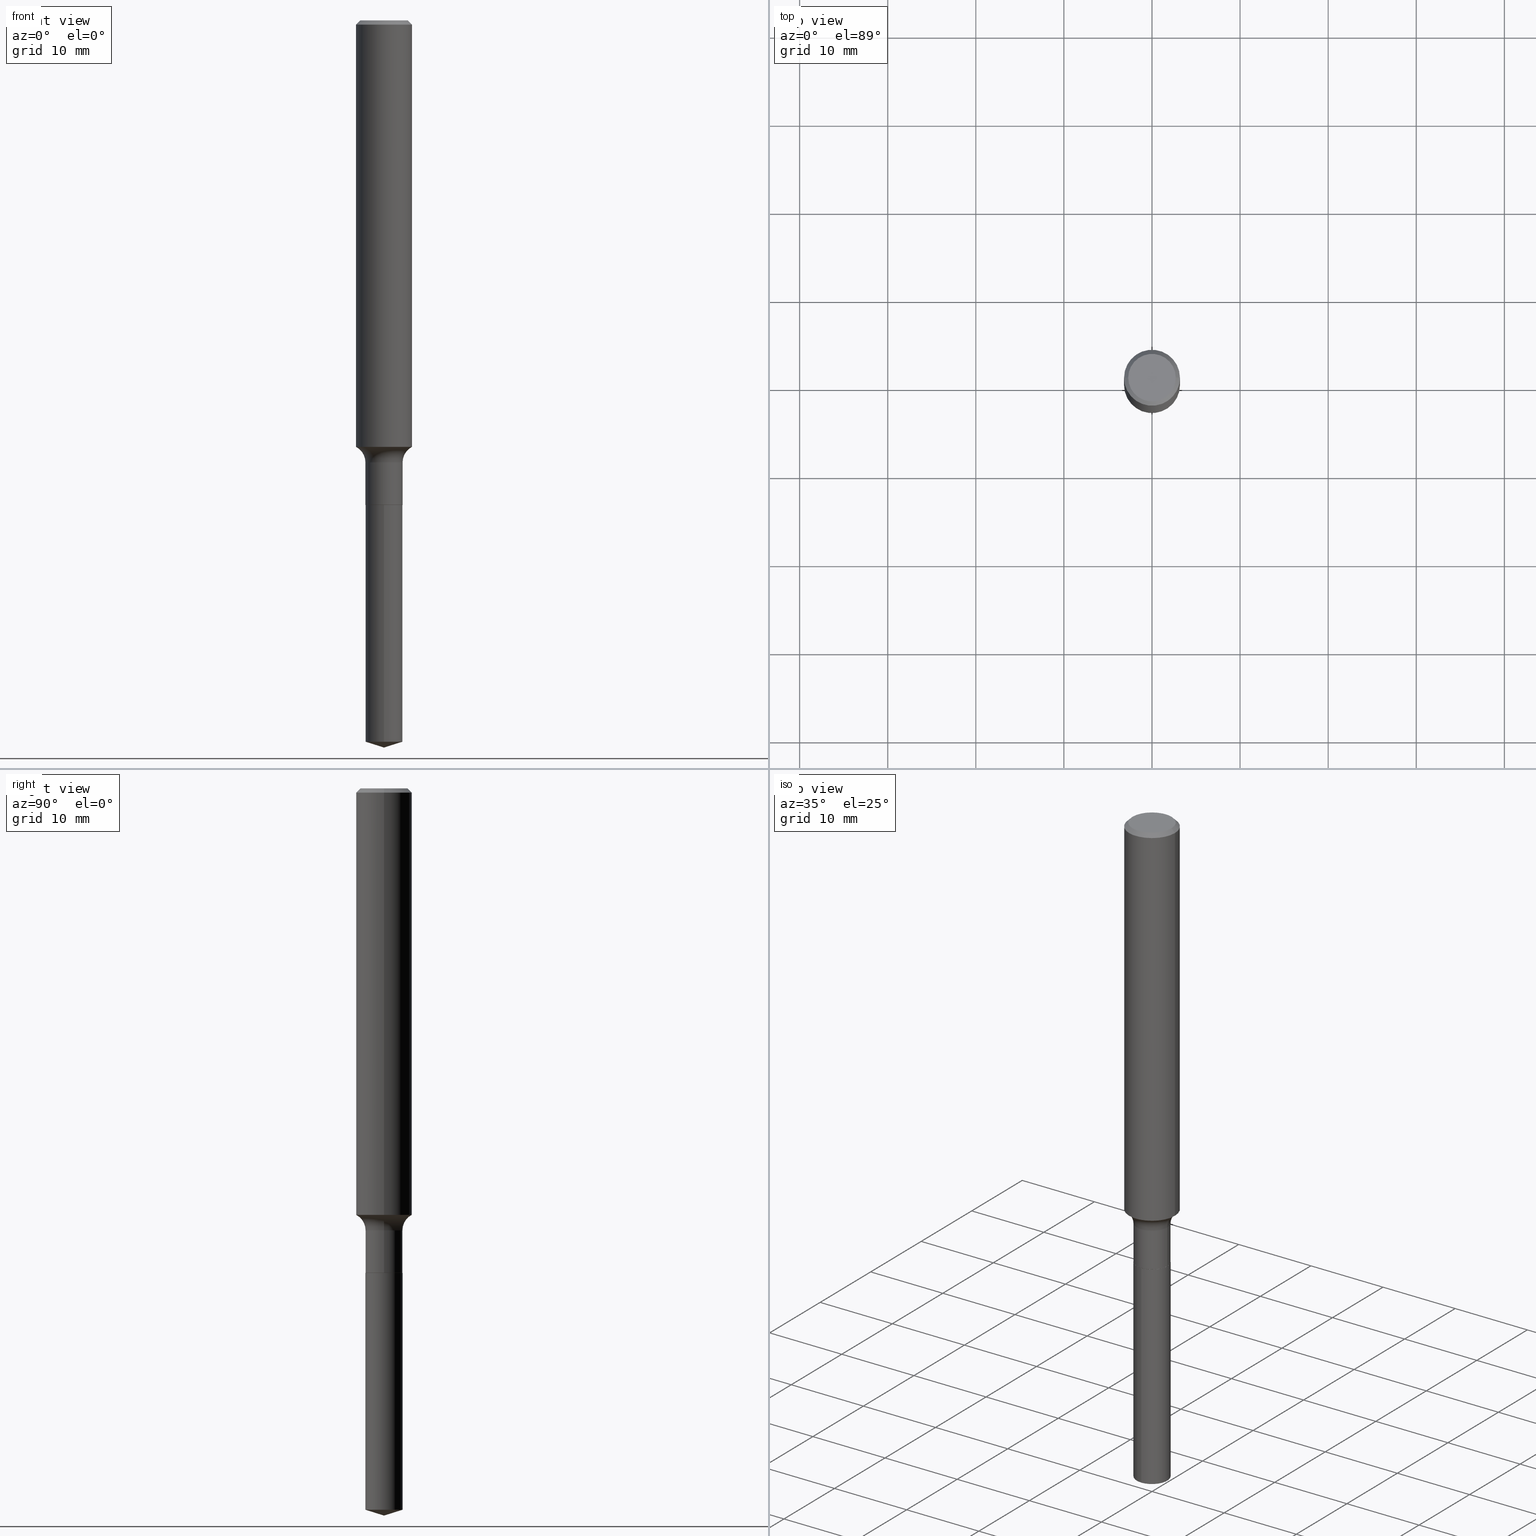
[diagram: canonical four-view strip — front | top / right | iso, engineering-drawing reading convention]
A machine part, canonical four-view strip (front | top / right | iso — engineering-drawing reading convention). The complete STEP part file that produces these views, byte-faithful:
ISO-10303-21;
HEADER;
FILE_DESCRIPTION (( 'STEP AP203' ),
    '1' );
FILE_NAME ('52324.STEP',
    '2024-04-19T13:39:19',
    ( '' ),
    ( '' ),
    'SwSTEP 2.0',
    'SolidWorks 2023',
    '' );
FILE_SCHEMA (( 'CONFIG_CONTROL_DESIGN' ));
ENDSEC;

DATA;
#1 = DIRECTION ( 'NONE',  ( 0.7071067811865447972, -7.319954787623245001E-15, -0.7071067811865501263 ) ) ;
#2 = EDGE_CURVE ( 'NONE', #251, #137, #111, .T. ) ;
#3 = EDGE_CURVE ( 'NONE', #106, #176, #339, .T. ) ;
#4 = DIRECTION ( 'NONE',  ( 1.000000000000000000, -6.982962677686266711E-15, 4.883557194083112340E-29 ) ) ;
#5 = CARTESIAN_POINT ( 'NONE',  ( -0.08250000000000000389, -6.973701595758059246E-15, -2.165999999999999925 ) ) ;
#6 = AXIS2_PLACEMENT_3D ( 'NONE', #485, #435, #98 ) ;
#7 = AXIS2_PLACEMENT_3D ( 'NONE', #214, #75, #219 ) ;
#8 = ORIENTED_EDGE ( 'NONE', *, *, #112, .T. ) ;
#9 = APPLICATION_PROTOCOL_DEFINITION ( 'international standard', 'config_control_design', 1994, #252 ) ;
#10 = DIRECTION ( 'NONE',  ( 1.000000000000000000, -6.982962677686267499E-15, 4.876176775795936353E-29 ) ) ;
#11 = DESIGN_CONTEXT ( 'detailed design', #277, 'design' ) ;
#12 = ADVANCED_FACE ( 'NONE', ( #114 ), #374, .T. ) ;
#13 = CC_DESIGN_PERSON_AND_ORGANIZATION_ASSIGNMENT ( #458, #270, ( #431 ) ) ;
#14 = CARTESIAN_POINT ( 'NONE',  ( 0.08299999999999999045, -7.475610694597056827E-15, -1.975100000000000300 ) ) ;
#15 = PERSON_AND_ORGANIZATION ( #281, #89 ) ;
#16 = ORIENTED_EDGE ( 'NONE', *, *, #77, .F. ) ;
#17 = CARTESIAN_POINT ( 'NONE',  ( 0.000000000000000000, 0.000000000000000000, 0.000000000000000000 ) ) ;
#18 = VECTOR ( 'NONE', #132, 39.37007874015748143 ) ;
#19 = VECTOR ( 'NONE', #126, 39.37007874015748143 ) ;
#20 = ORIENTED_EDGE ( 'NONE', *, *, #3, .T. ) ;
#21 = ADVANCED_FACE ( 'NONE', ( #264 ), #119, .T. ) ;
#22 = CYLINDRICAL_SURFACE ( 'NONE', #265, 0.08299999999999999045 ) ;
#23 = CC_DESIGN_DATE_AND_TIME_ASSIGNMENT ( #212, #482, ( #165 ) ) ;
#24 = CARTESIAN_POINT ( 'NONE',  ( 4.585254011597165626E-31, -6.546527510330947764E-17, -0.01875000000000014155 ) ) ;
#25 = ADVANCED_FACE ( 'NONE', ( #379 ), #80, .F. ) ;
#26 = ORIENTED_EDGE ( 'NONE', *, *, #486, .F. ) ;
#27 = DIRECTION ( 'NONE',  ( -0.7071067811865447972, 2.468850131082228662E-15, -0.7071067811865501263 ) ) ;
#28 = CARTESIAN_POINT ( 'NONE',  ( -1.591006383764330940E-46, 2.271535455632768948E-32, 6.505936120470318766E-18 ) ) ;
#29 = COORDINATED_UNIVERSAL_TIME_OFFSET ( 5, 0, .BEHIND. ) ;
#30 = EDGE_LOOP ( 'NONE', ( #213, #148, #97, #68 ) ) ;
#31 = CARTESIAN_POINT ( 'NONE',  ( -0.1250000000000002498, -5.766252010118968709E-15, -1.905904624431975281 ) ) ;
#32 = DIRECTION ( 'NONE',  ( -2.445486196868284062E-29, 3.491456434395062399E-15, 1.000000000000000000 ) ) ;
#33 = TOROIDAL_SURFACE ( 'NONE', #402, 0.1610000000000000042, 0.07800000000000001377 ) ;
#34 = VECTOR ( 'NONE', #85, 39.37007874015748854 ) ;
#35 = EDGE_LOOP ( 'NONE', ( #16, #220, #249, #444 ) ) ;
#36 = CARTESIAN_POINT ( 'NONE',  ( -0.08299999999999999045, 5.897504706808830864E-16, -4.082716124911570857E-30 ) ) ;
#37 = ORIENTED_EDGE ( 'NONE', *, *, #268, .T. ) ;
#38 = CARTESIAN_POINT ( 'NONE',  ( -0.1250000000000000000, -2.471769432761074338E-15, -0.01875000000000014155 ) ) ;
#39 = ADVANCED_FACE ( 'NONE', ( #158 ), #235, .T. ) ;
#40 = DIRECTION ( 'NONE',  ( -2.445468806185136877E-29, 3.491481338843145188E-15, 1.000000000000000000 ) ) ;
#41 = DIRECTION ( 'NONE',  ( -1.000000000000000000, 6.982962677686265922E-15, -4.876176775795935793E-29 ) ) ;
#42 = DIRECTION ( 'NONE',  ( 1.000000000000000000, -6.982962677686267499E-15, 0.000000000000000000 ) ) ;
#43 = PERSON_AND_ORGANIZATION_ROLE ( 'classification_officer' ) ;
#44 = EDGE_CURVE ( 'NONE', #137, #176, #318, .T. ) ;
#45 = AXIS2_PLACEMENT_3D ( 'NONE', #352, #390, #313 ) ;
#46 = DIRECTION ( 'NONE',  ( 2.445468806185136597E-29, -3.491481338843145583E-15, -1.000000000000000000 ) ) ;
#47 = CONICAL_SURFACE ( 'NONE', #255, 124.8659371009111965, 1.265363707695882800 ) ;
#48 = CARTESIAN_POINT ( 'NONE',  ( 5.897504706809620711E-16, 0.08299999999999244094, -2.165999999999999925 ) ) ;
#49 = VERTEX_POINT ( 'NONE', #198 ) ;
#50 = DIRECTION ( 'NONE',  ( -2.445468806185136877E-29, 3.491481338843145188E-15, 1.000000000000000000 ) ) ;
#51 = ORIENTED_EDGE ( 'NONE', *, *, #369, .F. ) ;
#52 = ADVANCED_FACE ( 'NONE', ( #125 ), #241, .T. ) ;
#53 = CIRCLE ( 'NONE', #363, 0.08299999999999999045 ) ;
#54 =( CONVERSION_BASED_UNIT ( 'INCH', #192 ) LENGTH_UNIT ( ) NAMED_UNIT ( #421 ) );
#55 = AXIS2_PLACEMENT_3D ( 'NONE', #347, #491, #203 ) ;
#56 = CARTESIAN_POINT ( 'NONE',  ( -1.591006383764330940E-46, 2.271535455632768948E-32, 6.505936120470318766E-18 ) ) ;
#57 = DIRECTION ( 'NONE',  ( -2.445468806185136597E-29, 3.491481338843145583E-15, 1.000000000000000000 ) ) ;
#58 = DIRECTION ( 'NONE',  ( -2.445468806185136597E-29, 3.491481338843145583E-15, 1.000000000000000000 ) ) ;
#59 = AXIS2_PLACEMENT_3D ( 'NONE', #456, #420, #42 ) ;
#60 = AXIS2_PLACEMENT_3D ( 'NONE', #306, #180, #177 ) ;
#61 = CC_DESIGN_PERSON_AND_ORGANIZATION_ASSIGNMENT ( #488, #43, ( #194 ) ) ;
#62 = EDGE_LOOP ( 'NONE', ( #490, #20, #372, #76 ) ) ;
#63 = DIRECTION ( 'NONE',  ( -2.445486196868284062E-29, 3.491456434395062399E-15, 1.000000000000000000 ) ) ;
#64 = DATE_AND_TIME ( #467, #154 ) ;
#65 = VERTEX_POINT ( 'NONE', #169 ) ;
#66 = DIRECTION ( 'NONE',  ( -2.445468806185136597E-29, 3.491481338843145583E-15, 1.000000000000000000 ) ) ;
#67 = CALENDAR_DATE ( 2024, 19, 4 ) ;
#68 = ORIENTED_EDGE ( 'NONE', *, *, #227, .F. ) ;
#69 = DIRECTION ( 'NONE',  ( -2.445486196868284062E-29, 3.491456434395062399E-15, 1.000000000000000000 ) ) ;
#70 = LOCAL_TIME ( 9, 39, 19.00000000000000000, #344 ) ;
#71 = EDGE_LOOP ( 'NONE', ( #364, #396, #459 ) ) ;
#72 = FACE_OUTER_BOUND ( 'NONE', #71, .T. ) ;
#73 = FACE_OUTER_BOUND ( 'NONE', #254, .T. ) ;
#74 = ORIENTED_EDGE ( 'NONE', *, *, #129, .T. ) ;
#75 = DIRECTION ( 'NONE',  ( -2.445468806185136597E-29, 3.491481338843145583E-15, 1.000000000000000000 ) ) ;
#76 = ORIENTED_EDGE ( 'NONE', *, *, #246, .F. ) ;
#77 = EDGE_CURVE ( 'NONE', #195, #457, #321, .T. ) ;
#78 = DIRECTION ( 'NONE',  ( -2.445468806185136597E-29, 3.491481338843145583E-15, 1.000000000000000000 ) ) ;
#79 = PERSON_AND_ORGANIZATION_ROLE ( 'design_supplier' ) ;
#80 = TOROIDAL_SURFACE ( 'NONE', #273, 0.1610000000000000042, 0.07800000000000001377 ) ;
#81 = DATE_AND_TIME ( #383, #187 ) ;
#82 = ADVANCED_FACE ( 'NONE', ( #87 ), #240, .T. ) ;
#83 = CARTESIAN_POINT ( 'NONE',  ( 4.585254011597165626E-31, -6.546527510330947764E-17, -0.01875000000000014155 ) ) ;
#84 = AXIS2_PLACEMENT_3D ( 'NONE', #400, #69, #408 ) ;
#85 = DIRECTION ( 'NONE',  ( 6.776566513254238416E-15, 0.9537169507482260444, 0.3007057995042756726 ) ) ;
#86 = EDGE_CURVE ( 'NONE', #106, #49, #416, .T. ) ;
#87 = FACE_OUTER_BOUND ( 'NONE', #35, .T. ) ;
#88 = VECTOR ( 'NONE', #256, 39.37007874015748143 ) ;
#89 = ORGANIZATION ( 'UNSPECIFIED', 'UNSPECIFIED', '' ) ;
#90 = APPROVAL_PERSON_ORGANIZATION ( #151, #181, #411 ) ;
#91 =( LENGTH_UNIT ( ) NAMED_UNIT ( * ) SI_UNIT ( $, .METRE. ) );
#92 = PERSON_AND_ORGANIZATION_ROLE ( 'design_owner' ) ;
#93 = AXIS2_PLACEMENT_3D ( 'NONE', #366, #359, #283 ) ;
#94 = CARTESIAN_POINT ( 'NONE',  ( 5.296885434197005931E-29, -7.562548579934253227E-15, -2.165999999999999925 ) ) ;
#95 = VERTEX_POINT ( 'NONE', #386 ) ;
#96 = CARTESIAN_POINT ( 'NONE',  ( 4.585254011597165626E-31, -6.546527510330947764E-17, -0.01875000000000014155 ) ) ;
#97 = ORIENTED_EDGE ( 'NONE', *, *, #343, .T. ) ;
#98 = DIRECTION ( 'NONE',  ( 1.000000000000000000, -6.982962677686263555E-15, 0.000000000000000000 ) ) ;
#99 = ORIENTED_EDGE ( 'NONE', *, *, #450, .F. ) ;
#100 = DIRECTION ( 'NONE',  ( -2.445468806185136597E-29, 3.491481338843145583E-15, 1.000000000000000000 ) ) ;
#101 = AXIS2_PLACEMENT_3D ( 'NONE', #267, #199, #351 ) ;
#102 = ORIENTED_EDGE ( 'NONE', *, *, #388, .F. ) ;
#103 = DIRECTION ( 'NONE',  ( -6.659769872151613156E-15, -0.9537169507482240460, 0.3007057995042823340 ) ) ;
#104 = DATE_TIME_ROLE ( 'classification_date' ) ;
#105 = EDGE_CURVE ( 'NONE', #287, #342, #204, .T. ) ;
#106 = VERTEX_POINT ( 'NONE', #442 ) ;
#107 = CARTESIAN_POINT ( 'NONE',  ( 0.000000000000000000, 0.000000000000000000, 0.000000000000000000 ) ) ;
#108 = APPROVAL_DATE_TIME ( #370, #432 ) ;
#109 = DIRECTION ( 'NONE',  ( -2.438088387897960049E-29, 3.491481338843145188E-15, 1.000000000000000000 ) ) ;
#110 = CALENDAR_DATE ( 2024, 19, 4 ) ;
#111 = CIRCLE ( 'NONE', #127, 0.1250000000000002498 ) ;
#112 = EDGE_CURVE ( 'NONE', #457, #484, #166, .T. ) ;
#113 = AXIS2_PLACEMENT_3D ( 'NONE', #380, #465, #41 ) ;
#114 = FACE_OUTER_BOUND ( 'NONE', #182, .T. ) ;
#115 = FACE_OUTER_BOUND ( 'NONE', #327, .T. ) ;
#116 = CARTESIAN_POINT ( 'NONE',  ( -5.795859022479071374E-16, -0.08300000000000756772, -2.165999999999999481 ) ) ;
#117 = EDGE_CURVE ( 'NONE', #399, #176, #471, .T. ) ;
#118 = LINE ( 'NONE', #36, #122 ) ;
#119 = CONICAL_SURFACE ( 'NONE', #354, 0.1250000000000000000, 0.7853981633974445042 ) ;
#120 = AXIS2_PLACEMENT_3D ( 'NONE', #299, #470, #286 ) ;
#121 = ORIENTED_EDGE ( 'NONE', *, *, #227, .T. ) ;
#122 = VECTOR ( 'NONE', #40, 39.37007874015748143 ) ;
#123 = CARTESIAN_POINT ( 'NONE',  ( 0.08250000000000000389, -8.138643000843369915E-15, -2.165999999999999925 ) ) ;
#124 = ADVANCED_FACE ( 'NONE', ( #250 ), #22, .T. ) ;
#125 = FACE_OUTER_BOUND ( 'NONE', #191, .T. ) ;
#126 = DIRECTION ( 'NONE',  ( -2.445486196868284062E-29, 3.491456434395062794E-15, 1.000000000000000000 ) ) ;
#127 = AXIS2_PLACEMENT_3D ( 'NONE', #230, #382, #462 ) ;
#128 = CIRCLE ( 'NONE', #55, 0.07800000000000002764 ) ;
#129 = EDGE_CURVE ( 'NONE', #95, #342, #53, .T. ) ;
#130 = DIRECTION ( 'NONE',  ( -2.445468806185136877E-29, 3.491481338843145188E-15, 1.000000000000000000 ) ) ;
#131 = COORDINATED_UNIVERSAL_TIME_OFFSET ( 5, 0, .BEHIND. ) ;
#132 = DIRECTION ( 'NONE',  ( -2.445486196868284062E-29, 3.491456434395062794E-15, 1.000000000000000000 ) ) ;
#133 = ORIENTED_EDGE ( 'NONE', *, *, #436, .T. ) ;
#134 = VECTOR ( 'NONE', #103, 39.37007874015748143 ) ;
#135 = CARTESIAN_POINT ( 'NONE',  ( 5.295662699793913130E-29, -7.560802839264830935E-15, -2.165499999999999758 ) ) ;
#136 = COORDINATED_UNIVERSAL_TIME_OFFSET ( 5, 0, .BEHIND. ) ;
#137 = VERTEX_POINT ( 'NONE', #474 ) ;
#138 = DIRECTION ( 'NONE',  ( -6.982962677686266711E-15, -1.000000000000000000, 3.291383124896702687E-15 ) ) ;
#139 = DIRECTION ( 'NONE',  ( -6.982962677686266711E-15, -1.000000000000000000, 6.582766249793405374E-15 ) ) ;
#140 = ORIENTED_EDGE ( 'NONE', *, *, #369, .T. ) ;
#141 = DIRECTION ( 'NONE',  ( 1.000000000000000000, -6.982962677686266711E-15, 4.883557194083112340E-29 ) ) ;
#142 = DIRECTION ( 'NONE',  ( 1.000000000000000000, -6.982962677686266711E-15, 0.000000000000000000 ) ) ;
#143 = VERTEX_POINT ( 'NONE', #288 ) ;
#144 = DIRECTION ( 'NONE',  ( -2.445468806185136597E-29, 3.491481338843145583E-15, 1.000000000000000000 ) ) ;
#145 = EDGE_CURVE ( 'NONE', #261, #143, #231, .T. ) ;
#146 = VECTOR ( 'NONE', #1, 39.37007874015748854 ) ;
#147 = APPROVAL_PERSON_ORGANIZATION ( #394, #174, #320 ) ;
#148 = ORIENTED_EDGE ( 'NONE', *, *, #205, .T. ) ;
#149 = CARTESIAN_POINT ( 'NONE',  ( 0.1250000000000000000, -9.383356098140928781E-16, -0.01875000000000014155 ) ) ;
#150 = DIRECTION ( 'NONE',  ( -2.445468806185136877E-29, 3.491481338843145188E-15, 1.000000000000000000 ) ) ;
#151 = PERSON_AND_ORGANIZATION ( #281, #89 ) ;
#152 = ORIENTED_EDGE ( 'NONE', *, *, #2, .F. ) ;
#153 = CARTESIAN_POINT ( 'NONE',  ( 5.296885434197005931E-29, -7.562548579934253227E-15, -2.165999999999999925 ) ) ;
#154 = LOCAL_TIME ( 9, 39, 19.00000000000000000, #136 ) ;
#155 = LOCAL_TIME ( 9, 39, 19.00000000000000000, #29 ) ;
#156 = EDGE_LOOP ( 'NONE', ( #74, #37, #345, #196 ) ) ;
#157 = EDGE_CURVE ( 'NONE', #195, #65, #296, .T. ) ;
#158 = FACE_OUTER_BOUND ( 'NONE', #156, .T. ) ;
#159 = FACE_OUTER_BOUND ( 'NONE', #172, .T. ) ;
#160 = DIRECTION ( 'NONE',  ( 1.000000000000000000, -6.982962677686267499E-15, 0.000000000000000000 ) ) ;
#161 = EDGE_CURVE ( 'NONE', #449, #287, #424, .T. ) ;
#162 = CIRCLE ( 'NONE', #7, 0.08299999999999999045 ) ;
#163 = DIRECTION ( 'NONE',  ( -2.445468806185136597E-29, 3.491481338843145583E-15, 1.000000000000000000 ) ) ;
#164 = ADVANCED_FACE ( 'NONE', ( #335 ), #239, .T. ) ;
#165 = PRODUCT_DEFINITION ( 'UNKNOWN', '', #431, #11 ) ;
#166 = CIRCLE ( 'NONE', #200, 0.08300000000000000433 ) ;
#167 = CYLINDRICAL_SURFACE ( 'NONE', #333, 0.08300000000000000433 ) ;
#168 = AXIS2_PLACEMENT_3D ( 'NONE', #262, #302, #336 ) ;
#169 = CARTESIAN_POINT ( 'NONE',  ( -5.795859022478812036E-16, -0.08300000000001124534, -3.223830200523043477 ) ) ;
#170 = CARTESIAN_POINT ( 'NONE',  ( -8.833119165707037489E-28, 1.261116273851445838E-13, 36.12007874015748143 ) ) ;
#171 = APPROVAL_DATE_TIME ( #64, #174 ) ;
#172 = EDGE_LOOP ( 'NONE', ( #413, #438, #102, #215 ) ) ;
#173 = VECTOR ( 'NONE', #130, 39.37007874015748143 ) ;
#174 = APPROVAL ( #329, 'UNSPECIFIED' ) ;
#175 = DIRECTION ( 'NONE',  ( 2.445468806185136597E-29, -3.491481338843145583E-15, -1.000000000000000000 ) ) ;
#176 = VERTEX_POINT ( 'NONE', #149 ) ;
#177 = DIRECTION ( 'NONE',  ( 1.000000000000000000, -6.982962677686267499E-15, 0.000000000000000000 ) ) ;
#178 = ORIENTED_EDGE ( 'NONE', *, *, #205, .F. ) ;
#179 = DIRECTION ( 'NONE',  ( 1.000000000000000000, -6.982962677686266711E-15, 4.876176775795935793E-29 ) ) ;
#180 = DIRECTION ( 'NONE',  ( -2.445468806185136597E-29, 3.491481338843145583E-15, 1.000000000000000000 ) ) ;
#181 = APPROVAL ( #453, 'UNSPECIFIED' ) ;
#182 = EDGE_LOOP ( 'NONE', ( #340, #361, #234, #407 ) ) ;
#183 = CARTESIAN_POINT ( 'NONE',  ( 4.585254011597165626E-31, -6.546527510330947764E-17, -0.01875000000000014155 ) ) ;
#184 = VECTOR ( 'NONE', #50, 39.37007874015748143 ) ;
#185 = CARTESIAN_POINT ( 'NONE',  ( -0.08299999999999999045, -6.638663345126081144E-15, -2.165499999999999758 ) ) ;
#186 = DATE_AND_TIME ( #110, #155 ) ;
#187 = LOCAL_TIME ( 9, 39, 19.00000000000000000, #338 ) ;
#188 = ORIENTED_EDGE ( 'NONE', *, *, #44, .F. ) ;
#189 = DIRECTION ( 'NONE',  ( 1.000000000000000000, -6.982962677686267499E-15, 4.876176775795936353E-29 ) ) ;
#190 = ADVANCED_FACE ( 'NONE', ( #247 ), #33, .F. ) ;
#191 = EDGE_LOOP ( 'NONE', ( #367, #387, #237, #188 ) ) ;
#192 = LENGTH_MEASURE_WITH_UNIT ( LENGTH_MEASURE( 0.02539999999999999897 ), #91 );
#193 = DIRECTION ( 'NONE',  ( 1.000000000000000000, -6.982962677686265922E-15, 4.876176775795935793E-29 ) ) ;
#194 = SECURITY_CLASSIFICATION ( '', '', #263 ) ;
#195 = VERTEX_POINT ( 'NONE', #445 ) ;
#196 = ORIENTED_EDGE ( 'NONE', *, *, #343, .F. ) ;
#197 = CC_DESIGN_PERSON_AND_ORGANIZATION_ASSIGNMENT ( #419, #79, ( #431 ) ) ;
#198 = CARTESIAN_POINT ( 'NONE',  ( -0.1062499999999999972, 7.746724220558198188E-16, 6.505936120465015526E-18 ) ) ;
#199 = DIRECTION ( 'NONE',  ( -6.982962677686266711E-15, -1.000000000000000000, 3.491481338843145583E-15 ) ) ;
#200 = AXIS2_PLACEMENT_3D ( 'NONE', #94, #362, #138 ) ;
#201 = AXIS2_PLACEMENT_3D ( 'NONE', #96, #175, #289 ) ;
#202 = CARTESIAN_POINT ( 'NONE',  ( -5.795859022479071374E-16, -0.08300000000000756772, -2.165999999999999481 ) ) ;
#203 = DIRECTION ( 'NONE',  ( -1.000000000000000000, 7.105427357600995548E-15, 0.000000000000000000 ) ) ;
#204 = LINE ( 'NONE', #397, #88 ) ;
#205 = EDGE_CURVE ( 'NONE', #342, #95, #162, .T. ) ;
#206 = AXIS2_PLACEMENT_3D ( 'NONE', #331, #144, #293 ) ;
#207 = APPROVAL_PERSON_ORGANIZATION ( #260, #432, #348 ) ;
#208 = EDGE_LOOP ( 'NONE', ( #315, #133, #454 ) ) ;
#209 = EDGE_LOOP ( 'NONE', ( #292, #51, #285, #479 ) ) ;
#210 = ADVANCED_BREP_SHAPE_REPRESENTATION ( '52324', ( #412, #414, #93 ), #312 ) ;
#211 = DIRECTION ( 'NONE',  ( -2.445468806185136597E-29, 3.491481338843145583E-15, 1.000000000000000000 ) ) ;
#212 = DATE_AND_TIME ( #67, #460 ) ;
#213 = ORIENTED_EDGE ( 'NONE', *, *, #268, .F. ) ;
#214 = CARTESIAN_POINT ( 'NONE',  ( 5.295662699793913130E-29, -7.560802839264830935E-15, -2.165499999999999758 ) ) ;
#215 = ORIENTED_EDGE ( 'NONE', *, *, #276, .F. ) ;
#216 = DIRECTION ( 'NONE',  ( -6.982962677686265922E-15, -1.000000000000000000, 3.500519750498812900E-15 ) ) ;
#217 = CYLINDRICAL_SURFACE ( 'NONE', #284, 0.1250000000000001110 ) ;
#218 = EDGE_LOOP ( 'NONE', ( #469, #375 ) ) ;
#219 = DIRECTION ( 'NONE',  ( 1.000000000000000000, -6.982962677686263555E-15, 0.000000000000000000 ) ) ;
#220 = ORIENTED_EDGE ( 'NONE', *, *, #157, .T. ) ;
#221 = CLOSED_SHELL ( 'NONE', ( #291, #164, #233, #82, #272 ) ) ;
#222 = CIRCLE ( 'NONE', #309, 0.1250000000000000000 ) ;
#223 = DIRECTION ( 'NONE',  ( -2.445486196868284062E-29, 3.491456434395062399E-15, 1.000000000000000000 ) ) ;
#224 = CC_DESIGN_APPROVAL ( #181, ( #194 ) ) ;
#225 = DIRECTION ( 'NONE',  ( -1.000000000000000000, 6.982962677686266711E-15, 0.000000000000000000 ) ) ;
#226 = FACE_OUTER_BOUND ( 'NONE', #311, .T. ) ;
#227 = EDGE_CURVE ( 'NONE', #143, #261, #385, .T. ) ;
#228 = DIRECTION ( 'NONE',  ( 2.445486196868283221E-29, -3.491456434395062794E-15, -1.000000000000000000 ) ) ;
#229 = APPROVAL_STATUS ( 'not_yet_approved' ) ;
#230 = CARTESIAN_POINT ( 'NONE',  ( 4.660830306612393661E-29, -6.654430429819095519E-15, -1.905904624431975281 ) ) ;
#231 = CIRCLE ( 'NONE', #6, 0.08299999999999999045 ) ;
#232 = VECTOR ( 'NONE', #27, 39.37007874015748854 ) ;
#233 = ADVANCED_FACE ( 'NONE', ( #72 ), #47, .T. ) ;
#234 = ORIENTED_EDGE ( 'NONE', *, *, #129, .F. ) ;
#235 = CYLINDRICAL_SURFACE ( 'NONE', #447, 0.08299999999999999045 ) ;
#236 = LINE ( 'NONE', #202, #19 ) ;
#237 = ORIENTED_EDGE ( 'NONE', *, *, #337, .F. ) ;
#238 = AXIS2_PLACEMENT_3D ( 'NONE', #428, #58, #10 ) ;
#239 = CONICAL_SURFACE ( 'NONE', #120, 124.8659371009111965, 1.265363707695882800 ) ;
#240 = CYLINDRICAL_SURFACE ( 'NONE', #45, 0.08300000000000000433 ) ;
#241 = CYLINDRICAL_SURFACE ( 'NONE', #238, 0.1250000000000001110 ) ;
#242 = DIRECTION ( 'NONE',  ( -6.982962677686266711E-15, -1.000000000000000000, 3.291383124896702687E-15 ) ) ;
#243 = AXIS2_PLACEMENT_3D ( 'NONE', #56, #356, #274 ) ;
#244 = CARTESIAN_POINT ( 'NONE',  ( 0.000000000000000000, 0.000000000000000000, 0.000000000000000000 ) ) ;
#245 = CIRCLE ( 'NONE', #60, 0.08250000000000000389 ) ;
#246 = EDGE_CURVE ( 'NONE', #49, #399, #358, .T. ) ;
#247 = FACE_OUTER_BOUND ( 'NONE', #377, .T. ) ;
#248 = APPLICATION_PROTOCOL_DEFINITION ( 'international standard', 'config_control_design', 1994, #277 ) ;
#249 = ORIENTED_EDGE ( 'NONE', *, *, #276, .T. ) ;
#250 = FACE_OUTER_BOUND ( 'NONE', #30, .T. ) ;
#251 = VERTEX_POINT ( 'NONE', #31 ) ;
#252 = APPLICATION_CONTEXT ( 'configuration controlled 3d designs of mechanical parts and assemblies' ) ;
#253 = PLANE ( 'NONE',  #317 ) ;
#254 = EDGE_LOOP ( 'NONE', ( #308, #332, #441, #403 ) ) ;
#255 = AXIS2_PLACEMENT_3D ( 'NONE', #170, #63, #216 ) ;
#256 = DIRECTION ( 'NONE',  ( -0.7071067811866078578, 7.493145998870571886E-15, 0.7071067811864871766 ) ) ;
#257 = DIRECTION ( 'NONE',  ( 0.7071067811866078578, -2.468850131082888544E-15, 0.7071067811864871766 ) ) ;
#258 =( NAMED_UNIT ( * ) PLANE_ANGLE_UNIT ( ) SI_UNIT ( $, .RADIAN. ) );
#259 = ORIENTED_EDGE ( 'NONE', *, *, #86, .T. ) ;
#260 = PERSON_AND_ORGANIZATION ( #281, #89 ) ;
#261 = VERTEX_POINT ( 'NONE', #14 ) ;
#262 = CARTESIAN_POINT ( 'NONE',  ( 4.660830306612393661E-29, -6.654430429819095519E-15, -1.905904624431975281 ) ) ;
#263 = SECURITY_CLASSIFICATION_LEVEL ( 'unclassified' ) ;
#264 = FACE_OUTER_BOUND ( 'NONE', #209, .T. ) ;
#265 = AXIS2_PLACEMENT_3D ( 'NONE', #17, #66, #179 ) ;
#266 = AXIS2_PLACEMENT_3D ( 'NONE', #153, #163, #160 ) ;
#267 = CARTESIAN_POINT ( 'NONE',  ( 0.1610000000000000042, -8.020281783456586451E-15, -1.975100000000000300 ) ) ;
#268 = EDGE_CURVE ( 'NONE', #342, #143, #118, .T. ) ;
#269 = PLANE ( 'NONE',  #113 ) ;
#270 = PERSON_AND_ORGANIZATION_ROLE ( 'creator' ) ;
#271 = CARTESIAN_POINT ( 'NONE',  ( 5.296885434197005931E-29, -7.562548579934253227E-15, -2.165999999999999925 ) ) ;
#272 = ADVANCED_FACE ( 'NONE', ( #115 ), #384, .F. ) ;
#273 = AXIS2_PLACEMENT_3D ( 'NONE', #310, #57, #4 ) ;
#274 = DIRECTION ( 'NONE',  ( 1.000000000000000000, -6.982962677686266711E-15, 4.875930095424100059E-29 ) ) ;
#275 = CIRCLE ( 'NONE', #168, 0.1250000000000002498 ) ;
#276 = EDGE_CURVE ( 'NONE', #65, #484, #236, .T. ) ;
#277 = APPLICATION_CONTEXT ( 'configuration controlled 3d designs of mechanical parts and assemblies' ) ;
#278 = VECTOR ( 'NONE', #257, 39.37007874015748143 ) ;
#279 = DIRECTION ( 'NONE',  ( -2.445468806185136597E-29, 3.491481338843145583E-15, 1.000000000000000000 ) ) ;
#280 =( NAMED_UNIT ( * ) SI_UNIT ( $, .STERADIAN. ) SOLID_ANGLE_UNIT ( ) );
#281 = PERSON ( 'UNSPECIFIED', 'UNSPECIFIED', 'UNSPECIFIED', ('UNSPECIFIED'), ('UNSPECIFIED'), ('UNSPECIFIED') ) ;
#282 = CC_DESIGN_PERSON_AND_ORGANIZATION_ASSIGNMENT ( #439, #398, ( #165 ) ) ;
#283 = DIRECTION ( 'NONE',  ( 1.000000000000000000, 0.000000000000000000, 0.000000000000000000 ) ) ;
#284 = AXIS2_PLACEMENT_3D ( 'NONE', #107, #452, #189 ) ;
#285 = ORIENTED_EDGE ( 'NONE', *, *, #246, .T. ) ;
#286 = DIRECTION ( 'NONE',  ( -6.982962677686265922E-15, -1.000000000000000000, 3.500519750498812900E-15 ) ) ;
#287 = VERTEX_POINT ( 'NONE', #5 ) ;
#288 = CARTESIAN_POINT ( 'NONE',  ( -0.08299999999999999045, -6.638663345126081144E-15, -1.975100000000000300 ) ) ;
#289 = DIRECTION ( 'NONE',  ( -1.000000000000000000, 6.982962677686266711E-15, 0.000000000000000000 ) ) ;
#290 = MECHANICAL_CONTEXT ( 'NONE', #252, 'mechanical' ) ;
#291 = ADVANCED_FACE ( 'NONE', ( #159 ), #167, .T. ) ;
#292 = ORIENTED_EDGE ( 'NONE', *, *, #3, .F. ) ;
#293 = DIRECTION ( 'NONE',  ( 1.000000000000000000, -6.982962677686267499E-15, 0.000000000000000000 ) ) ;
#294 = CARTESIAN_POINT ( 'NONE',  ( 0.08299999999999999045, -5.795859022479600896E-16, 4.047226723910626092E-30 ) ) ;
#295 = ORIENTED_EDGE ( 'NONE', *, *, #360, .T. ) ;
#296 = CIRCLE ( 'NONE', #84, 0.08300000000000000433 ) ;
#297 = EDGE_CURVE ( 'NONE', #322, #65, #365, .T. ) ;
#298 = AXIS2_PLACEMENT_3D ( 'NONE', #410, #223, #378 ) ;
#299 = CARTESIAN_POINT ( 'NONE',  ( -8.833119165707037489E-28, 1.261116273851445838E-13, 36.12007874015748143 ) ) ;
#300 = LINE ( 'NONE', #481, #278 ) ;
#301 = ORIENTED_EDGE ( 'NONE', *, *, #145, .T. ) ;
#302 = DIRECTION ( 'NONE',  ( -2.445468806185136597E-29, 3.491481338843145583E-15, 1.000000000000000000 ) ) ;
#303 = EDGE_CURVE ( 'NONE', #137, #251, #275, .T. ) ;
#304 = CARTESIAN_POINT ( 'NONE',  ( 0.1250000000000000000, -9.230275248247509846E-16, -0.01875000000000014155 ) ) ;
#305 = PRODUCT_RELATED_PRODUCT_CATEGORY ( 'detail', '', ( #395 ) ) ;
#306 = CARTESIAN_POINT ( 'NONE',  ( 5.296885434197005931E-29, -7.562548579934253227E-15, -2.165999999999999925 ) ) ;
#307 = CLOSED_SHELL ( 'NONE', ( #12, #406, #52, #190, #39, #124, #25, #381, #21, #468, #430, #461 ) ) ;
#308 = ORIENTED_EDGE ( 'NONE', *, *, #433, .F. ) ;
#309 = AXIS2_PLACEMENT_3D ( 'NONE', #24, #415, #142 ) ;
#310 = CARTESIAN_POINT ( 'NONE',  ( 4.830045439096264236E-29, -6.896024792349097132E-15, -1.975100000000000300 ) ) ;
#311 = EDGE_LOOP ( 'NONE', ( #140, #259 ) ) ;
#312 =( GEOMETRIC_REPRESENTATION_CONTEXT ( 3 ) GLOBAL_UNCERTAINTY_ASSIGNED_CONTEXT ( ( #357 ) ) GLOBAL_UNIT_ASSIGNED_CONTEXT ( ( #54, #258, #280 ) ) REPRESENTATION_CONTEXT ( 'NONE', 'WORKASPACE' ) );
#313 = DIRECTION ( 'NONE',  ( -6.982962677686266711E-15, -1.000000000000000000, 3.291383124896702687E-15 ) ) ;
#314 = CARTESIAN_POINT ( 'NONE',  ( 0.1250000000000001110, -8.728703347107842263E-16, 6.095220969744926047E-30 ) ) ;
#315 = ORIENTED_EDGE ( 'NONE', *, *, #297, .F. ) ;
#316 = AXIS2_PLACEMENT_3D ( 'NONE', #183, #211, #451 ) ;
#317 = AXIS2_PLACEMENT_3D ( 'NONE', #401, #109, #193 ) ;
#318 = LINE ( 'NONE', #314, #173 ) ;
#319 = CARTESIAN_POINT ( 'NONE',  ( 5.296885434197005931E-29, -7.562548579934253227E-15, -2.165999999999999925 ) ) ;
#320 = APPROVAL_ROLE ( '' ) ;
#321 = LINE ( 'NONE', #429, #18 ) ;
#322 = VERTEX_POINT ( 'NONE', #478 ) ;
#323 = EDGE_CURVE ( 'NONE', #65, #195, #376, .T. ) ;
#324 = PRODUCT_DEFINITION_SHAPE ( 'NONE', 'NONE',  #165 ) ;
#325 = EDGE_LOOP ( 'NONE', ( #391, #295, #487, #178 ) ) ;
#326 = DIRECTION ( 'NONE',  ( -2.445468806185136597E-29, 3.491481338843145583E-15, 1.000000000000000000 ) ) ;
#327 = EDGE_LOOP ( 'NONE', ( #476, #8 ) ) ;
#328 = CARTESIAN_POINT ( 'NONE',  ( 7.947754803382528759E-29, -1.134734129785304964E-14, -3.250000000000000000 ) ) ;
#329 = APPROVAL_STATUS ( 'not_yet_approved' ) ;
#330 = EDGE_LOOP ( 'NONE', ( #26, #423, #350, #301 ) ) ;
#331 = CARTESIAN_POINT ( 'NONE',  ( 5.296885434197005931E-29, -7.562548579934253227E-15, -2.165999999999999925 ) ) ;
#332 = ORIENTED_EDGE ( 'NONE', *, *, #2, .T. ) ;
#333 = AXIS2_PLACEMENT_3D ( 'NONE', #319, #434, #242 ) ;
#334 = AXIS2_PLACEMENT_3D ( 'NONE', #28, #78, #405 ) ;
#335 = FACE_OUTER_BOUND ( 'NONE', #208, .T. ) ;
#336 = DIRECTION ( 'NONE',  ( 1.000000000000000000, -6.982962677686264344E-15, 0.000000000000000000 ) ) ;
#337 = EDGE_CURVE ( 'NONE', #176, #399, #222, .T. ) ;
#338 = COORDINATED_UNIVERSAL_TIME_OFFSET ( 5, 0, .BEHIND. ) ;
#339 = LINE ( 'NONE', #304, #146 ) ;
#340 = ORIENTED_EDGE ( 'NONE', *, *, #161, .T. ) ;
#341 = FACE_OUTER_BOUND ( 'NONE', #62, .T. ) ;
#342 = VERTEX_POINT ( 'NONE', #185 ) ;
#343 = EDGE_CURVE ( 'NONE', #95, #261, #446, .T. ) ;
#344 = COORDINATED_UNIVERSAL_TIME_OFFSET ( 5, 0, .BEHIND. ) ;
#345 = ORIENTED_EDGE ( 'NONE', *, *, #145, .F. ) ;
#346 = CC_DESIGN_APPROVAL ( #432, ( #431 ) ) ;
#347 = CARTESIAN_POINT ( 'NONE',  ( -0.1610000000000000042, -5.752050987775335606E-15, -1.975100000000000300 ) ) ;
#348 = APPROVAL_ROLE ( '' ) ;
#349 = FACE_OUTER_BOUND ( 'NONE', #325, .T. ) ;
#350 = ORIENTED_EDGE ( 'NONE', *, *, #450, .T. ) ;
#351 = DIRECTION ( 'NONE',  ( 1.000000000000000000, -6.982962677686268288E-15, 0.000000000000000000 ) ) ;
#352 = CARTESIAN_POINT ( 'NONE',  ( 5.296885434197005931E-29, -7.562548579934253227E-15, -2.165999999999999925 ) ) ;
#353 = DIRECTION ( 'NONE',  ( 6.982962677686265922E-15, 1.000000000000000000, -3.491456434395062794E-15 ) ) ;
#354 = AXIS2_PLACEMENT_3D ( 'NONE', #83, #46, #225 ) ;
#355 = CIRCLE ( 'NONE', #298, 0.08300000000000000433 ) ;
#356 = DIRECTION ( 'NONE',  ( -2.445468806185136597E-29, 3.491481338843145583E-15, 1.000000000000000000 ) ) ;
#357 = UNCERTAINTY_MEASURE_WITH_UNIT (LENGTH_MEASURE( 1.000000000000000082E-05 ), #54, 'distance_accuracy_value', 'NONE');
#358 = LINE ( 'NONE', #368, #232 ) ;
#359 = DIRECTION ( 'NONE',  ( 0.000000000000000000, 0.000000000000000000, 1.000000000000000000 ) ) ;
#360 = EDGE_CURVE ( 'NONE', #287, #449, #245, .T. ) ;
#361 = ORIENTED_EDGE ( 'NONE', *, *, #105, .T. ) ;
#362 = DIRECTION ( 'NONE',  ( -2.445486196868284062E-29, 3.491456434395062399E-15, 1.000000000000000000 ) ) ;
#363 = AXIS2_PLACEMENT_3D ( 'NONE', #135, #326, #480 ) ;
#364 = ORIENTED_EDGE ( 'NONE', *, *, #436, .F. ) ;
#365 = LINE ( 'NONE', #328, #134 ) ;
#366 = CARTESIAN_POINT ( 'NONE',  ( 0.000000000000000000, 0.000000000000000000, 0.000000000000000000 ) ) ;
#367 = ORIENTED_EDGE ( 'NONE', *, *, #303, .T. ) ;
#368 = CARTESIAN_POINT ( 'NONE',  ( -0.1250000000000000000, 8.074050596074738982E-16, -0.01875000000000014155 ) ) ;
#369 = EDGE_CURVE ( 'NONE', #49, #106, #417, .T. ) ;
#370 = DATE_AND_TIME ( #418, #70 ) ;
#371 = EDGE_CURVE ( 'NONE', #449, #95, #300, .T. ) ;
#372 = ORIENTED_EDGE ( 'NONE', *, *, #337, .T. ) ;
#373 = CARTESIAN_POINT ( 'NONE',  ( 4.830045439096264236E-29, -6.896024792349097132E-15, -1.975100000000000300 ) ) ;
#374 = CONICAL_SURFACE ( 'NONE', #59, 0.08250000000000000389, 0.7853981633975336552 ) ;
#375 = ORIENTED_EDGE ( 'NONE', *, *, #360, .F. ) ;
#376 = CIRCLE ( 'NONE', #437, 0.08300000000000000433 ) ;
#377 = EDGE_LOOP ( 'NONE', ( #152, #473, #121, #99 ) ) ;
#378 = DIRECTION ( 'NONE',  ( -6.982962677686266711E-15, -1.000000000000000000, 3.291383124896702687E-15 ) ) ;
#379 = FACE_OUTER_BOUND ( 'NONE', #330, .T. ) ;
#380 = CARTESIAN_POINT ( 'NONE',  ( -7.955031918821654702E-47, 1.135767727816384474E-32, 3.252968060235159383E-18 ) ) ;
#381 = ADVANCED_FACE ( 'NONE', ( #73 ), #217, .T. ) ;
#382 = DIRECTION ( 'NONE',  ( -2.445468806185136597E-29, 3.491481338843145583E-15, 1.000000000000000000 ) ) ;
#383 = CALENDAR_DATE ( 2024, 19, 4 ) ;
#384 = PLANE ( 'NONE',  #464 ) ;
#385 = CIRCLE ( 'NONE', #483, 0.08299999999999999045 ) ;
#386 = CARTESIAN_POINT ( 'NONE',  ( 0.08299999999999999045, -8.140388741512790630E-15, -2.165499999999999758 ) ) ;
#387 = ORIENTED_EDGE ( 'NONE', *, *, #433, .T. ) ;
#388 = EDGE_CURVE ( 'NONE', #484, #457, #355, .T. ) ;
#389 = DIRECTION ( 'NONE',  ( 1.000000000000000000, -6.982962677686266711E-15, 4.876176775795935793E-29 ) ) ;
#390 = DIRECTION ( 'NONE',  ( -2.445486196868284062E-29, 3.491456434395062399E-15, 1.000000000000000000 ) ) ;
#391 = ORIENTED_EDGE ( 'NONE', *, *, #105, .F. ) ;
#392 = CONICAL_SURFACE ( 'NONE', #201, 0.1250000000000000000, 0.7853981633974445042 ) ;
#393 = CARTESIAN_POINT ( 'NONE',  ( 4.830045439096264236E-29, -6.896024792349097132E-15, -1.975100000000000300 ) ) ;
#394 = PERSON_AND_ORGANIZATION ( #281, #89 ) ;
#395 = PRODUCT ( '52324', '52324', '', ( #290 ) ) ;
#396 = ORIENTED_EDGE ( 'NONE', *, *, #297, .T. ) ;
#397 = CARTESIAN_POINT ( 'NONE',  ( -0.08250000000000000389, -6.976350822932170447E-15, -2.165999999999999925 ) ) ;
#398 = PERSON_AND_ORGANIZATION_ROLE ( 'creator' ) ;
#399 = VERTEX_POINT ( 'NONE', #38 ) ;
#400 = CARTESIAN_POINT ( 'NONE',  ( 7.883794588206518333E-29, -1.125591664004785458E-14, -3.223830200523043921 ) ) ;
#401 = CARTESIAN_POINT ( 'NONE',  ( 5.296885434197005931E-29, -7.562548579934253227E-15, -2.165999999999999925 ) ) ;
#402 = AXIS2_PLACEMENT_3D ( 'NONE', #393, #477, #141 ) ;
#403 = ORIENTED_EDGE ( 'NONE', *, *, #117, .F. ) ;
#404 = DIRECTION ( 'NONE',  ( 1.000000000000000000, -6.982962677686263555E-15, 0.000000000000000000 ) ) ;
#405 = DIRECTION ( 'NONE',  ( 1.000000000000000000, -6.982962677686266711E-15, 4.875930095424100059E-29 ) ) ;
#406 = ADVANCED_FACE ( 'NONE', ( #341 ), #392, .T. ) ;
#407 = ORIENTED_EDGE ( 'NONE', *, *, #371, .F. ) ;
#408 = DIRECTION ( 'NONE',  ( -6.982962677686266711E-15, -1.000000000000000000, 6.582766249793405374E-15 ) ) ;
#409 = CC_DESIGN_PERSON_AND_ORGANIZATION_ASSIGNMENT ( #15, #92, ( #395 ) ) ;
#410 = CARTESIAN_POINT ( 'NONE',  ( 5.296885434197005931E-29, -7.562548579934253227E-15, -2.165999999999999925 ) ) ;
#411 = APPROVAL_ROLE ( '' ) ;
#412 = MANIFOLD_SOLID_BREP ( 'Body-Move/Copy2[1]', #221 ) ;
#413 = ORIENTED_EDGE ( 'NONE', *, *, #323, .T. ) ;
#414 = MANIFOLD_SOLID_BREP ( 'Body-Move/Copy2[2]', #307 ) ;
#415 = DIRECTION ( 'NONE',  ( -2.445468806185136597E-29, 3.491481338843145583E-15, 1.000000000000000000 ) ) ;
#416 = CIRCLE ( 'NONE', #243, 0.1062499999999999972 ) ;
#417 = CIRCLE ( 'NONE', #334, 0.1062499999999999972 ) ;
#418 = CALENDAR_DATE ( 2024, 19, 4 ) ;
#419 = PERSON_AND_ORGANIZATION ( #281, #89 ) ;
#420 = DIRECTION ( 'NONE',  ( -2.445468806185136597E-29, 3.491481338843145583E-15, 1.000000000000000000 ) ) ;
#421 = DIMENSIONAL_EXPONENTS ( 1.000000000000000000, 0.000000000000000000, 0.000000000000000000, 0.000000000000000000, 0.000000000000000000, 0.000000000000000000, 0.000000000000000000 ) ;
#422 = CARTESIAN_POINT ( 'NONE',  ( 7.947830800433568411E-29, -1.134723341178395349E-14, -3.250000000000000000 ) ) ;
#423 = ORIENTED_EDGE ( 'NONE', *, *, #303, .F. ) ;
#424 = CIRCLE ( 'NONE', #206, 0.08250000000000000389 ) ;
#425 = CC_DESIGN_APPROVAL ( #174, ( #165 ) ) ;
#426 = LINE ( 'NONE', #422, #34 ) ;
#427 = LINE ( 'NONE', #463, #184 ) ;
#428 = CARTESIAN_POINT ( 'NONE',  ( 0.000000000000000000, 0.000000000000000000, 0.000000000000000000 ) ) ;
#429 = CARTESIAN_POINT ( 'NONE',  ( 5.897504706809361373E-16, 0.08299999999999244094, -2.165999999999999925 ) ) ;
#430 = ADVANCED_FACE ( 'NONE', ( #443 ), #253, .F. ) ;
#431 = PRODUCT_DEFINITION_FORMATION_WITH_SPECIFIED_SOURCE ( 'ANY', '', #395, .NOT_KNOWN. ) ;
#432 = APPROVAL ( #229, 'UNSPECIFIED' ) ;
#433 = EDGE_CURVE ( 'NONE', #251, #399, #427, .T. ) ;
#434 = DIRECTION ( 'NONE',  ( -2.445486196868284062E-29, 3.491456434395062399E-15, 1.000000000000000000 ) ) ;
#435 = DIRECTION ( 'NONE',  ( -2.445468806185136597E-29, 3.491481338843145583E-15, 1.000000000000000000 ) ) ;
#436 = EDGE_CURVE ( 'NONE', #322, #195, #426, .T. ) ;
#437 = AXIS2_PLACEMENT_3D ( 'NONE', #475, #32, #139 ) ;
#438 = ORIENTED_EDGE ( 'NONE', *, *, #77, .T. ) ;
#439 = PERSON_AND_ORGANIZATION ( #281, #89 ) ;
#440 = CC_DESIGN_DATE_AND_TIME_ASSIGNMENT ( #186, #104, ( #194 ) ) ;
#441 = ORIENTED_EDGE ( 'NONE', *, *, #44, .T. ) ;
#442 = CARTESIAN_POINT ( 'NONE',  ( 0.1062499999999999972, -8.259777185439879685E-16, 6.505936120475800733E-18 ) ) ;
#443 = FACE_OUTER_BOUND ( 'NONE', #218, .T. ) ;
#444 = ORIENTED_EDGE ( 'NONE', *, *, #112, .F. ) ;
#445 = CARTESIAN_POINT ( 'NONE',  ( 5.897504706809619725E-16, 0.08299999999998876332, -3.223830200523044365 ) ) ;
#446 = LINE ( 'NONE', #294, #466 ) ;
#447 = AXIS2_PLACEMENT_3D ( 'NONE', #244, #279, #389 ) ;
#448 = CC_DESIGN_SECURITY_CLASSIFICATION ( #194, ( #431 ) ) ;
#449 = VERTEX_POINT ( 'NONE', #123 ) ;
#450 = EDGE_CURVE ( 'NONE', #137, #261, #472, .T. ) ;
#451 = DIRECTION ( 'NONE',  ( 1.000000000000000000, -6.982962677686266711E-15, 0.000000000000000000 ) ) ;
#452 = DIRECTION ( 'NONE',  ( -2.445468806185136597E-29, 3.491481338843145583E-15, 1.000000000000000000 ) ) ;
#453 = APPROVAL_STATUS ( 'not_yet_approved' ) ;
#454 = ORIENTED_EDGE ( 'NONE', *, *, #323, .F. ) ;
#455 = APPROVAL_DATE_TIME ( #81, #181 ) ;
#456 = CARTESIAN_POINT ( 'NONE',  ( 5.296885434197005931E-29, -7.562548579934253227E-15, -2.165999999999999925 ) ) ;
#457 = VERTEX_POINT ( 'NONE', #48 ) ;
#458 = PERSON_AND_ORGANIZATION ( #281, #89 ) ;
#459 = ORIENTED_EDGE ( 'NONE', *, *, #157, .F. ) ;
#460 = LOCAL_TIME ( 9, 39, 19.00000000000000000, #131 ) ;
#461 = ADVANCED_FACE ( 'NONE', ( #349 ), #489, .T. ) ;
#462 = DIRECTION ( 'NONE',  ( 1.000000000000000000, -6.982962677686264344E-15, 0.000000000000000000 ) ) ;
#463 = CARTESIAN_POINT ( 'NONE',  ( -0.1250000000000001110, 8.881784197001260212E-16, -6.148668862818637832E-30 ) ) ;
#464 = AXIS2_PLACEMENT_3D ( 'NONE', #271, #228, #353 ) ;
#465 = DIRECTION ( 'NONE',  ( 2.438088387897960049E-29, -3.491481338843145188E-15, -1.000000000000000000 ) ) ;
#466 = VECTOR ( 'NONE', #150, 39.37007874015748143 ) ;
#467 = CALENDAR_DATE ( 2024, 19, 4 ) ;
#468 = ADVANCED_FACE ( 'NONE', ( #226 ), #269, .F. ) ;
#469 = ORIENTED_EDGE ( 'NONE', *, *, #161, .F. ) ;
#470 = DIRECTION ( 'NONE',  ( -2.445486196868284062E-29, 3.491456434395062399E-15, 1.000000000000000000 ) ) ;
#471 = CIRCLE ( 'NONE', #316, 0.1250000000000000000 ) ;
#472 = CIRCLE ( 'NONE', #101, 0.07800000000000002764 ) ;
#473 = ORIENTED_EDGE ( 'NONE', *, *, #486, .T. ) ;
#474 = CARTESIAN_POINT ( 'NONE',  ( 0.1250000000000002498, -7.527300764529879646E-15, -1.905904624431975281 ) ) ;
#475 = CARTESIAN_POINT ( 'NONE',  ( 7.883794588206518333E-29, -1.125591664004785458E-14, -3.223830200523043921 ) ) ;
#476 = ORIENTED_EDGE ( 'NONE', *, *, #388, .T. ) ;
#477 = DIRECTION ( 'NONE',  ( -2.445468806185136597E-29, 3.491481338843145583E-15, 1.000000000000000000 ) ) ;
#478 = CARTESIAN_POINT ( 'NONE',  ( 7.947830139821923201E-29, -1.134723341178395191E-14, -3.250000000000000000 ) ) ;
#479 = ORIENTED_EDGE ( 'NONE', *, *, #117, .T. ) ;
#480 = DIRECTION ( 'NONE',  ( 1.000000000000000000, -6.982962677686263555E-15, 0.000000000000000000 ) ) ;
#481 = CARTESIAN_POINT ( 'NONE',  ( 0.08250000000000000389, -8.138643000843369915E-15, -2.165999999999999925 ) ) ;
#482 = DATE_TIME_ROLE ( 'creation_date' ) ;
#483 = AXIS2_PLACEMENT_3D ( 'NONE', #373, #100, #404 ) ;
#484 = VERTEX_POINT ( 'NONE', #116 ) ;
#485 = CARTESIAN_POINT ( 'NONE',  ( 4.830045439096264236E-29, -6.896024792349097132E-15, -1.975100000000000300 ) ) ;
#486 = EDGE_CURVE ( 'NONE', #251, #143, #128, .T. ) ;
#487 = ORIENTED_EDGE ( 'NONE', *, *, #371, .T. ) ;
#488 = PERSON_AND_ORGANIZATION ( #281, #89 ) ;
#489 = CONICAL_SURFACE ( 'NONE', #266, 0.08250000000000000389, 0.7853981633975336552 ) ;
#490 = ORIENTED_EDGE ( 'NONE', *, *, #86, .F. ) ;
#491 = DIRECTION ( 'NONE',  ( 7.105427357601001859E-15, 1.000000000000000000, -3.491481338843145583E-15 ) ) ;
#492 = SHAPE_DEFINITION_REPRESENTATION ( #324, #210 ) ;
ENDSEC;
END-ISO-10303-21;
